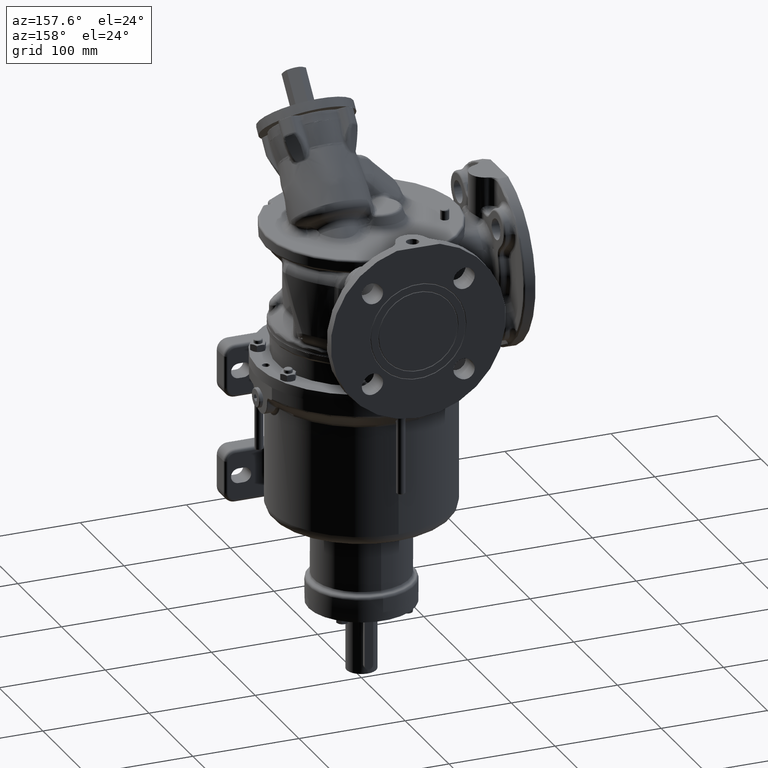
[diagram: clean part render]
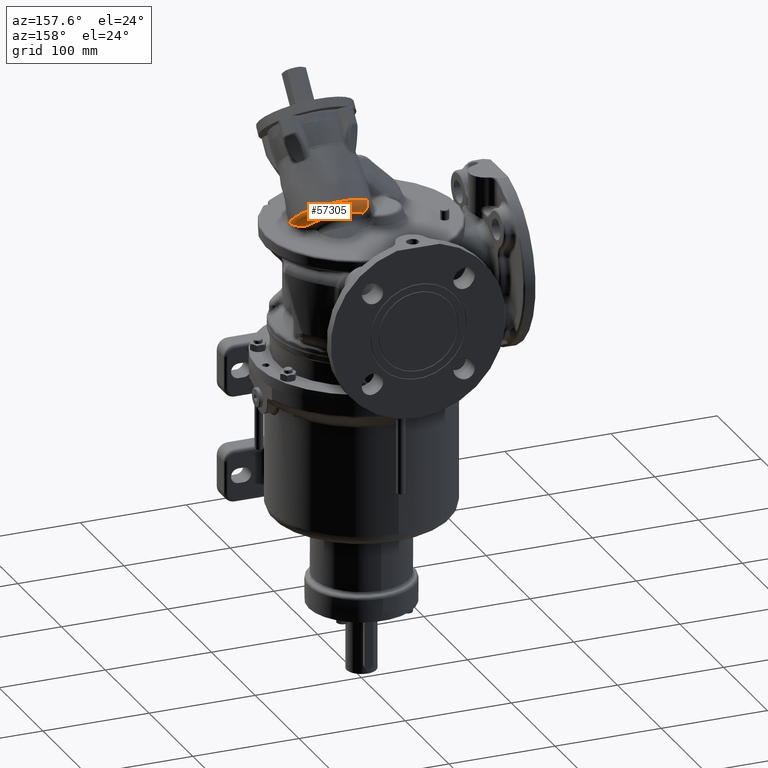
[diagram: same view with one face highlighted and labeled with its STEP entity id]
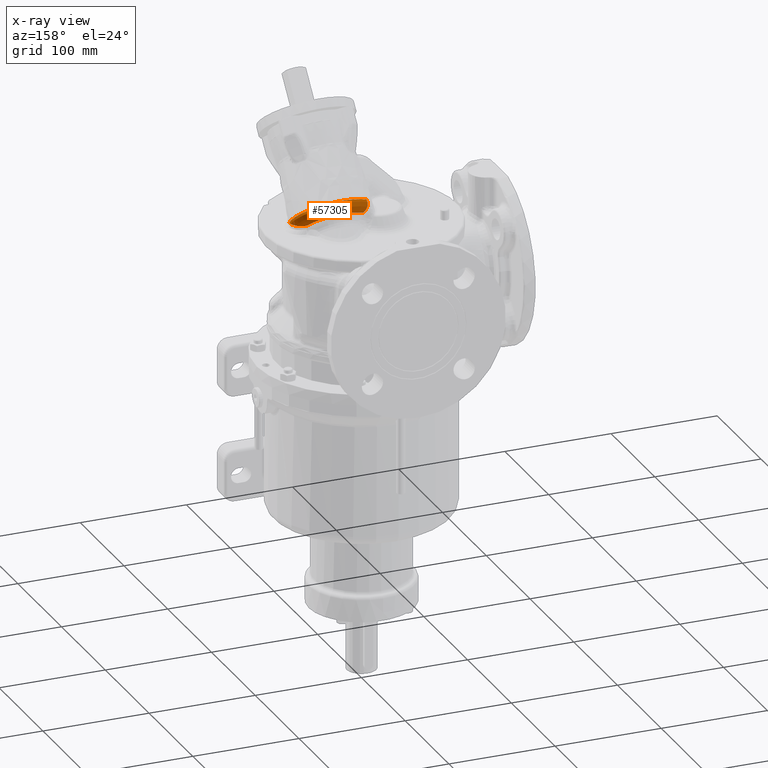
[diagram: x-ray of the same camera — body ghosted, the highlighted face saturated]
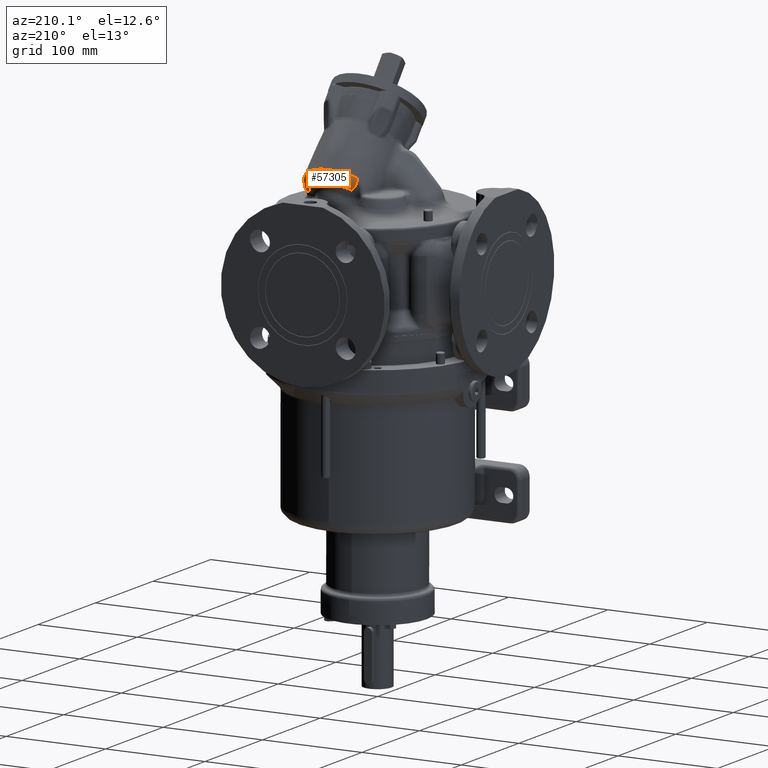
[diagram: same view with one face highlighted and labeled with its STEP entity id]
A machine part, auxiliary view. The second image highlights one B-rep face of the part: STEP entity #57305.
The next image is the same camera in x-ray: the body ghosted, the highlighted face saturated — about 0% of this face is hidden behind the body in this view.
A second angle (auxiliary view) of the same face is appended — the face is thin or edge-on in the first view.
In plain terms, the highlighted toroidal blend (fillet) surface has major radius 27.5 mm and minor (blend) radius 10 mm.
Its self-contained STEP definition (entity closure, byte-faithful):
#5999=CARTESIAN_POINT('',(3.047620154147E1,4.162493042489E0,1.460349372192E2));
#6000=DIRECTION('',(0.E0,6.427876096865E-1,-7.660444431190E-1));
#6001=DIRECTION('',(-6.613291425453E-1,5.746067480140E-1,4.821523103305E-1));
#6002=AXIS2_PLACEMENT_3D('',#5999,#6000,#6001);
#8523=CARTESIAN_POINT('',(3.047620154147E1,1.038625731115E1,1.386177437926E2));
#8524=DIRECTION('',(0.E0,-6.427876096865E-1,7.660444431190E-1));
#8525=DIRECTION('',(9.456006277351E-1,2.492170549296E-1,2.091179388745E-1));
#8526=AXIS2_PLACEMENT_3D('',#8523,#8524,#8525);
#8573=CARTESIAN_POINT('',(5.884422037353E1,1.786276895904E1,1.448912819588E2));
#8610=CARTESIAN_POINT('',(5.676362037364E0,2.571024753623E1,1.641156532342E2));
#8611=CARTESIAN_POINT('',(5.638173670829E0,2.576300812917E1,1.640003960595E2));
#8612=CARTESIAN_POINT('',(5.566257081804E0,2.586565913609E1,1.637696944432E2));
#8613=CARTESIAN_POINT('',(5.471883489967E0,2.601156223411E1,1.634239171984E2));
#8614=CARTESIAN_POINT('',(5.391099551691E0,2.614999978832E1,1.630790385349E2));
#8615=CARTESIAN_POINT('',(5.323804304269E0,2.628136549759E1,1.627356378573E2));
#8616=CARTESIAN_POINT('',(5.269923735525E0,2.640608239620E1,1.623942400020E2));
#8617=CARTESIAN_POINT('',(5.229356829385E0,2.652453298139E1,1.620553266252E2));
#8618=CARTESIAN_POINT('',(5.201845407049E0,2.663695258349E1,1.617193136778E2));
#8619=CARTESIAN_POINT('',(5.187140296070E0,2.674365926435E1,1.613863443950E2));
#8620=CARTESIAN_POINT('',(5.185053059862E0,2.684497289260E1,1.610565079793E2));
#8621=CARTESIAN_POINT('',(5.195331567868E0,2.694110216992E1,1.607298454721E2));
#8622=CARTESIAN_POINT('',(5.217693385572E0,2.703219655973E1,1.604062835643E2));
#8623=CARTESIAN_POINT('',(5.251970164611E0,2.711847630567E1,1.600854684025E2));
#8624=CARTESIAN_POINT('',(5.298105420214E0,2.720013005239E1,1.597670604325E2));
#8625=CARTESIAN_POINT('',(5.356058518467E0,2.727723329780E1,1.594509310143E2));
#8626=CARTESIAN_POINT('',(5.425697783593E0,2.734972580415E1,1.591368891526E2));
#8627=CARTESIAN_POINT('',(5.506949153681E0,2.741752063071E1,1.588248926600E2));
#8628=CARTESIAN_POINT('',(5.599754513744E0,2.748050030540E1,1.585149678525E2));
#8629=CARTESIAN_POINT('',(5.704127106964E0,2.753855792923E1,1.582070656176E2));
#8630=CARTESIAN_POINT('',(5.820173833652E0,2.759158213375E1,1.579009878676E2));
#8631=CARTESIAN_POINT('',(5.947918813892E0,2.763931845772E1,1.575965028749E2));
#8632=CARTESIAN_POINT('',(6.087325865377E0,2.768145168863E1,1.572936898993E2));
#8633=CARTESIAN_POINT('',(6.238346635555E0,2.771764269051E1,1.569926757926E2));
#8634=CARTESIAN_POINT('',(6.400935033561E0,2.774753554001E1,1.566936123605E2));
#8635=CARTESIAN_POINT('',(6.575042644097E0,2.777075748279E1,1.563966768662E2));
#8636=CARTESIAN_POINT('',(6.760504567805E0,2.778684654016E1,1.561020391548E2));
#8637=CARTESIAN_POINT('',(6.957072118673E0,2.779531921811E1,1.558099742349E2));
#8638=CARTESIAN_POINT('',(7.164477921350E0,2.779568107508E1,1.555207507217E2));
#8639=CARTESIAN_POINT('',(7.382241675403E0,2.778743563486E1,1.552348729292E2));
#8640=CARTESIAN_POINT('',(7.609846180080E0,2.777011191164E1,1.549528221107E2));
#8641=CARTESIAN_POINT('',(7.846549236023E0,2.774322126514E1,1.546751425970E2));
#8642=CARTESIAN_POINT('',(8.091524229875E0,2.770631748810E1,1.544023709979E2));
#8643=CARTESIAN_POINT('',(8.343843833528E0,2.765900799801E1,1.541350556321E2));
#8644=CARTESIAN_POINT('',(8.602456956725E0,2.760095892231E1,1.538737487643E2));
#8645=CARTESIAN_POINT('',(8.866303899069E0,2.753197354858E1,1.536190429976E2));
#8646=CARTESIAN_POINT('',(9.134015879630E0,2.745190137063E1,1.533715501856E2));
#8647=CARTESIAN_POINT('',(9.404184457807E0,2.736069667521E1,1.531318006879E2));
#8648=CARTESIAN_POINT('',(9.675463604707E0,2.725839323496E1,1.529001950533E2));
#8649=CARTESIAN_POINT('',(9.855933589443E0,2.718293696593E1,1.527515738728E2));
#8650=CARTESIAN_POINT('',(9.945993448865E0,2.714339074303E1,1.526786482751E2));
#8652=CARTESIAN_POINT('',(6.715010608966E1,-1.833962975726E0,1.410033131860E2));
#8653=CARTESIAN_POINT('',(6.719004175410E1,-1.619129586141E0,1.410383637631E2));
#8654=CARTESIAN_POINT('',(6.726293671722E1,-1.189895657204E0,1.411076395949E2));
#8655=CARTESIAN_POINT('',(6.735145205228E1,-5.483108084725E-1,
1.412091266711E2));
#8656=CARTESIAN_POINT('',(6.741937795818E1,9.071943047946E-2,1.413083849734E2));
#8657=CARTESIAN_POINT('',(6.746692234805E1,7.267897817801E-1,1.414055819997E2));
#8658=CARTESIAN_POINT('',(6.749429452532E1,1.359484449085E0,1.415008819393E2));
#8659=CARTESIAN_POINT('',(6.750170846075E1,1.988396060504E0,1.415944642054E2));
#8660=CARTESIAN_POINT('',(6.748937605691E1,2.613154375399E0,1.416865029132E2));
#8661=CARTESIAN_POINT('',(6.745751010781E1,3.233362563290E0,1.417771766048E2));
#8662=CARTESIAN_POINT('',(6.740632713471E1,3.848631389701E0,1.418666722490E2));
#8663=CARTESIAN_POINT('',(6.733603995288E1,4.458587692918E0,1.419551684400E2));
#8664=CARTESIAN_POINT('',(6.724686609061E1,5.062859136614E0,1.420428602221E2));
#8665=CARTESIAN_POINT('',(6.713902318321E1,5.661081234542E0,1.421299441718E2));
#8666=CARTESIAN_POINT('',(6.701272519344E1,6.252897701602E0,1.422166117848E2));
#8667=CARTESIAN_POINT('',(6.686819138484E1,6.837965086499E0,1.423030791108E2));
#8668=CARTESIAN_POINT('',(6.670563173593E1,7.415954863552E0,1.423895527349E2));
#8669=CARTESIAN_POINT('',(6.652526072025E1,7.986530349429E0,1.424762489975E2));
#8670=CARTESIAN_POINT('',(6.632729235459E1,8.549380129452E0,1.425634047694E2));
#8671=CARTESIAN_POINT('',(6.611190188832E1,9.104259786939E0,1.426512511779E2));
#8672=CARTESIAN_POINT('',(6.587930604031E1,9.650833979995E0,1.427400371264E2));
#8673=CARTESIAN_POINT('',(6.562973303408E1,1.018875941887E1,1.428300096966E2));
#8674=CARTESIAN_POINT('',(6.536327106163E1,1.071794963432E1,1.429214455039E2));
#8675=CARTESIAN_POINT('',(6.508003346662E1,1.123826035379E1,1.430146703568E2));
#8676=CARTESIAN_POINT('',(6.478013306339E1,1.174951577661E1,1.431100153189E2));
#8677=CARTESIAN_POINT('',(6.446372815782E1,1.225143712568E1,1.432077957583E2));
#8678=CARTESIAN_POINT('',(6.413097425929E1,1.274375633456E1,1.433083349888E2));
#8679=CARTESIAN_POINT('',(6.378185005894E1,1.322643406242E1,1.434120097576E2));
#8680=CARTESIAN_POINT('',(6.341637193788E1,1.369937149614E1,1.435192454426E2));
#8681=CARTESIAN_POINT('',(6.303454362602E1,1.416241574445E1,1.436304376004E2));
#8682=CARTESIAN_POINT('',(6.263631547476E1,1.461547707035E1,1.437460437328E2));
#8683=CARTESIAN_POINT('',(6.222161622078E1,1.505846048014E1,1.438665475892E2));
#8684=CARTESIAN_POINT('',(6.179032409347E1,1.549124996036E1,1.439924212500E2));
#8685=CARTESIAN_POINT('',(6.134231882115E1,1.591374800832E1,1.441242104813E2));
#8686=CARTESIAN_POINT('',(6.087740102994E1,1.632583536620E1,1.442624357614E2));
#8687=CARTESIAN_POINT('',(6.039546885667E1,1.672729433605E1,1.444076246502E2));
#8688=CARTESIAN_POINT('',(5.989643205453E1,1.711787021709E1,1.445602993423E2));
#8689=CARTESIAN_POINT('',(5.938033345179E1,1.749713350493E1,1.447208688819E2));
#8690=CARTESIAN_POINT('',(5.902473539656E1,1.774230068562E1,1.448335417264E2));
#8691=CARTESIAN_POINT('',(5.884422037353E1,1.786276895904E1,1.448912819588E2));
#45674=VERTEX_POINT('',#8573);
#45676=VERTEX_POINT('',#8652);
#45961=CARTESIAN_POINT('',(9.945993449387E0,2.714339074271E1,1.526786482746E2));
#45962=VERTEX_POINT('',#45961);
#45991=CARTESIAN_POINT('',(5.676358696024E0,2.571024609301E1,1.641156488566E2));
#45992=VERTEX_POINT('',#45991);
#57293=CARTESIAN_POINT('',(3.047620154147E1,4.162493042489E0,1.460349372192E2));
#57294=DIRECTION('',(0.E0,-6.427876096865E-1,7.660444431190E-1));
#57295=DIRECTION('',(0.E0,7.660444431190E-1,6.427876096865E-1));
#57296=AXIS2_PLACEMENT_3D('',#57293,#57294,#57295);
#57297=TOROIDAL_SURFACE('',#57296,2.75E1,1.E1);
#57298=ORIENTED_EDGE('',*,*,#53708,.F.);
#57300=ORIENTED_EDGE('',*,*,#57299,.T.);
#57301=ORIENTED_EDGE('',*,*,#57284,.F.);
#57302=ORIENTED_EDGE('',*,*,#52937,.F.);
#57303=EDGE_LOOP('',(#57298,#57300,#57301,#57302));
#57304=FACE_OUTER_BOUND('',#57303,.F.);
#57305=ADVANCED_FACE('',(#57304),#57297,.T.);
#6003=CIRCLE('',#6002,3.75E1);
#8527=CIRCLE('',#8526,3.E1);
#8651=B_SPLINE_CURVE_WITH_KNOTS('',3,(#8610,#8611,#8612,#8613,#8614,#8615,#8616,
#8617,#8618,#8619,#8620,#8621,#8622,#8623,#8624,#8625,#8626,#8627,#8628,#8629,
#8630,#8631,#8632,#8633,#8634,#8635,#8636,#8637,#8638,#8639,#8640,#8641,#8642,
#8643,#8644,#8645,#8646,#8647,#8648,#8649,#8650),.UNSPECIFIED.,.F.,.F.,(4,1,1,1,
1,1,1,1,1,1,1,1,1,1,1,1,1,1,1,1,1,1,1,1,1,1,1,1,1,1,1,1,1,1,1,1,1,1,4),(0.E0,
2.631578947368E-2,5.263157894737E-2,7.894736842105E-2,1.052631578947E-1,
1.315789473684E-1,1.578947368421E-1,1.842105263158E-1,2.105263157895E-1,
2.368421052632E-1,2.631578947368E-1,2.894736842105E-1,3.157894736842E-1,
3.421052631579E-1,3.684210526316E-1,3.947368421053E-1,4.210526315789E-1,
4.473684210526E-1,4.736842105263E-1,5.E-1,5.263157894737E-1,5.526315789474E-1,
5.789473684211E-1,6.052631578947E-1,6.315789473684E-1,6.578947368421E-1,
6.842105263158E-1,7.105263157895E-1,7.368421052632E-1,7.631578947368E-1,
7.894736842105E-1,8.157894736842E-1,8.421052631579E-1,8.684210526316E-1,
8.947368421053E-1,9.210526315789E-1,9.473684210526E-1,9.736842105263E-1,1.E0),
.UNSPECIFIED.);
#8692=B_SPLINE_CURVE_WITH_KNOTS('',3,(#8652,#8653,#8654,#8655,#8656,#8657,#8658,
#8659,#8660,#8661,#8662,#8663,#8664,#8665,#8666,#8667,#8668,#8669,#8670,#8671,
#8672,#8673,#8674,#8675,#8676,#8677,#8678,#8679,#8680,#8681,#8682,#8683,#8684,
#8685,#8686,#8687,#8688,#8689,#8690,#8691),.UNSPECIFIED.,.F.,.F.,(4,1,1,1,1,1,1,
1,1,1,1,1,1,1,1,1,1,1,1,1,1,1,1,1,1,1,1,1,1,1,1,1,1,1,1,1,1,4),(0.E0,
2.702702702703E-2,5.405405405405E-2,8.108108108108E-2,1.081081081081E-1,
1.351351351351E-1,1.621621621622E-1,1.891891891892E-1,2.162162162162E-1,
2.432432432432E-1,2.702702702703E-1,2.972972972973E-1,3.243243243243E-1,
3.513513513514E-1,3.783783783784E-1,4.054054054054E-1,4.324324324324E-1,
4.594594594595E-1,4.864864864865E-1,5.135135135135E-1,5.405405405405E-1,
5.675675675676E-1,5.945945945946E-1,6.216216216216E-1,6.486486486486E-1,
6.756756756757E-1,7.027027027027E-1,7.297297297297E-1,7.567567567568E-1,
7.837837837838E-1,8.108108108108E-1,8.378378378378E-1,8.648648648649E-1,
8.918918918919E-1,9.189189189189E-1,9.459459459459E-1,9.729729729730E-1,1.E0),
.UNSPECIFIED.);
#52937=EDGE_CURVE('',#45676,#45674,#8692,.T.);
#53708=EDGE_CURVE('',#45992,#45676,#6003,.T.);
#57284=EDGE_CURVE('',#45674,#45962,#8527,.T.);
#57299=EDGE_CURVE('',#45992,#45962,#8651,.T.);